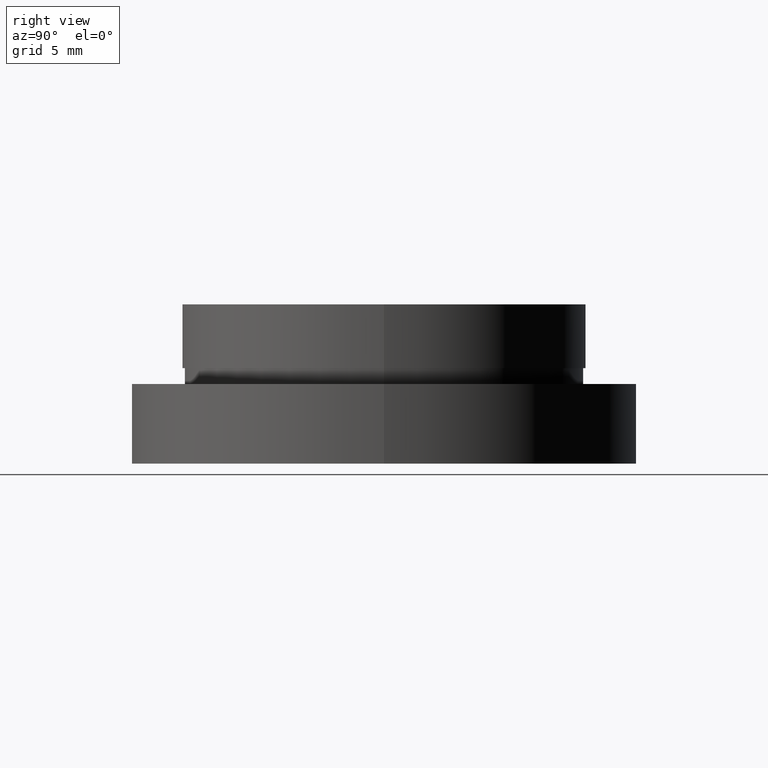
[diagram: clean part render]
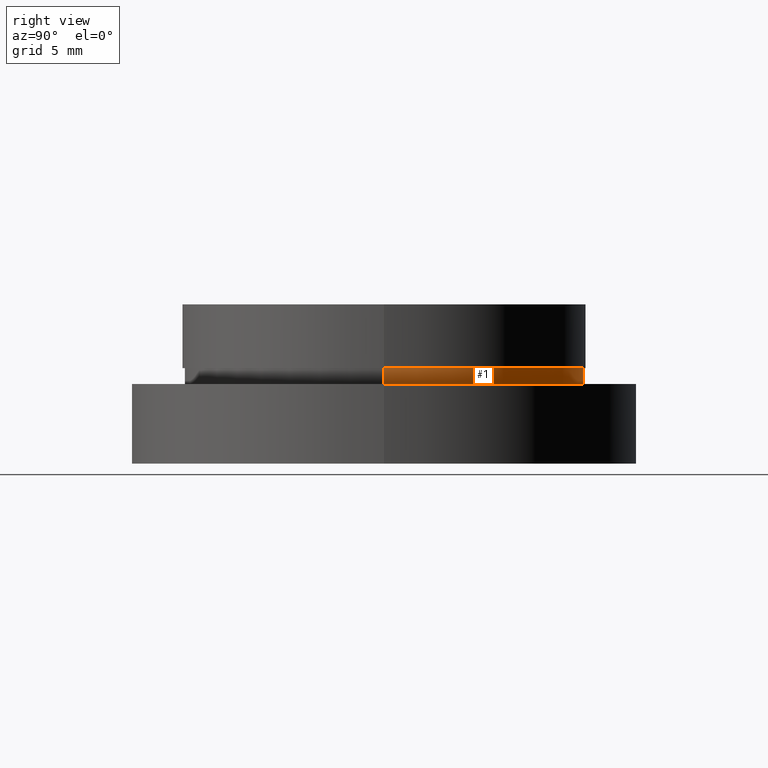
[diagram: same view with one face highlighted and labeled with its STEP entity id]
A machine part, right view. The second image highlights one B-rep face of the part: STEP entity #1.
In plain terms, the highlighted cylindrical surface (partial cylindrical patch) has radius 12.55 mm, axis along (-0, -0, -1).
Its self-contained STEP definition (entity closure, byte-faithful):
#1 = ADVANCED_FACE ( 'NONE', ( #333 ), #205, .T. ) ;
#2 = DIRECTION ( 'NONE',  ( -0.0000000000000000000, -0.0000000000000000000, -1.000000000000000000 ) ) ;
#8 = ORIENTED_EDGE ( 'NONE', *, *, #155, .F. ) ;
#11 = DIRECTION ( 'NONE',  ( -0.0000000000000000000, -0.0000000000000000000, -1.000000000000000000 ) ) ;
#18 = EDGE_CURVE ( 'NONE', #320, #64, #327, .T. ) ;
#39 = DIRECTION ( 'NONE',  ( -1.000000000000000000, 0.0000000000000000000, 0.0000000000000000000 ) ) ;
#44 = VERTEX_POINT ( 'NONE', #427 ) ;
#63 = CARTESIAN_POINT ( 'NONE',  ( 12.55000000000000200, 1.536931732929928600E-015, -19.14057971014493000 ) ) ;
#64 = VERTEX_POINT ( 'NONE', #248 ) ;
#73 = ORIENTED_EDGE ( 'NONE', *, *, #251, .F. ) ;
#120 = CARTESIAN_POINT ( 'NONE',  ( 0.0000000000000000000, 0.0000000000000000000, -4.000000000000000000 ) ) ;
#127 = DIRECTION ( 'NONE',  ( -1.000000000000000000, 0.0000000000000000000, 0.0000000000000000000 ) ) ;
#136 = CIRCLE ( 'NONE', #185, 12.55000000000000200 ) ;
#141 = VERTEX_POINT ( 'NONE', #330 ) ;
#150 = VECTOR ( 'NONE', #291, 1000.000000000000000 ) ;
#155 = EDGE_CURVE ( 'NONE', #141, #44, #136, .T. ) ;
#156 = DIRECTION ( 'NONE',  ( -1.000000000000000000, 0.0000000000000000000, 0.0000000000000000000 ) ) ;
#170 = CARTESIAN_POINT ( 'NONE',  ( -12.55000000000000200, 0.0000000000000000000, -4.000000000000000000 ) ) ;
#177 = ORIENTED_EDGE ( 'NONE', *, *, #284, .T. ) ;
#185 = AXIS2_PLACEMENT_3D ( 'NONE', #381, #372, #156 ) ;
#193 = DIRECTION ( 'NONE',  ( -0.0000000000000000000, -0.0000000000000000000, -1.000000000000000000 ) ) ;
#196 = AXIS2_PLACEMENT_3D ( 'NONE', #120, #11, #39 ) ;
#205 = CYLINDRICAL_SURFACE ( 'NONE', #240, 12.55000000000000200 ) ;
#214 = EDGE_LOOP ( 'NONE', ( #215, #177, #8, #73 ) ) ;
#215 = ORIENTED_EDGE ( 'NONE', *, *, #18, .T. ) ;
#228 = VECTOR ( 'NONE', #193, 1000.000000000000000 ) ;
#238 = CARTESIAN_POINT ( 'NONE',  ( 0.0000000000000000000, 0.0000000000000000000, -19.14057971014493000 ) ) ;
#240 = AXIS2_PLACEMENT_3D ( 'NONE', #238, #2, #127 ) ;
#248 = CARTESIAN_POINT ( 'NONE',  ( 12.55000000000000200, 1.536931732929928600E-015, -4.000000000000000000 ) ) ;
#251 = EDGE_CURVE ( 'NONE', #320, #141, #276, .T. ) ;
#276 = LINE ( 'NONE', #431, #150 ) ;
#284 = EDGE_CURVE ( 'NONE', #64, #44, #365, .T. ) ;
#291 = DIRECTION ( 'NONE',  ( -0.0000000000000000000, -0.0000000000000000000, -1.000000000000000000 ) ) ;
#320 = VERTEX_POINT ( 'NONE', #170 ) ;
#327 = CIRCLE ( 'NONE', #196, 12.55000000000000200 ) ;
#330 = CARTESIAN_POINT ( 'NONE',  ( -12.55000000000000200, 0.0000000000000000000, -5.000000000000000900 ) ) ;
#333 = FACE_OUTER_BOUND ( 'NONE', #214, .T. ) ;
#365 = LINE ( 'NONE', #63, #228 ) ;
#372 = DIRECTION ( 'NONE',  ( -0.0000000000000000000, -0.0000000000000000000, -1.000000000000000000 ) ) ;
#381 = CARTESIAN_POINT ( 'NONE',  ( 0.0000000000000000000, 0.0000000000000000000, -5.000000000000000900 ) ) ;
#427 = CARTESIAN_POINT ( 'NONE',  ( 12.55000000000000200, 1.536931732929928600E-015, -5.000000000000000900 ) ) ;
#431 = CARTESIAN_POINT ( 'NONE',  ( -12.55000000000000200, 0.0000000000000000000, -19.14057971014493000 ) ) ;